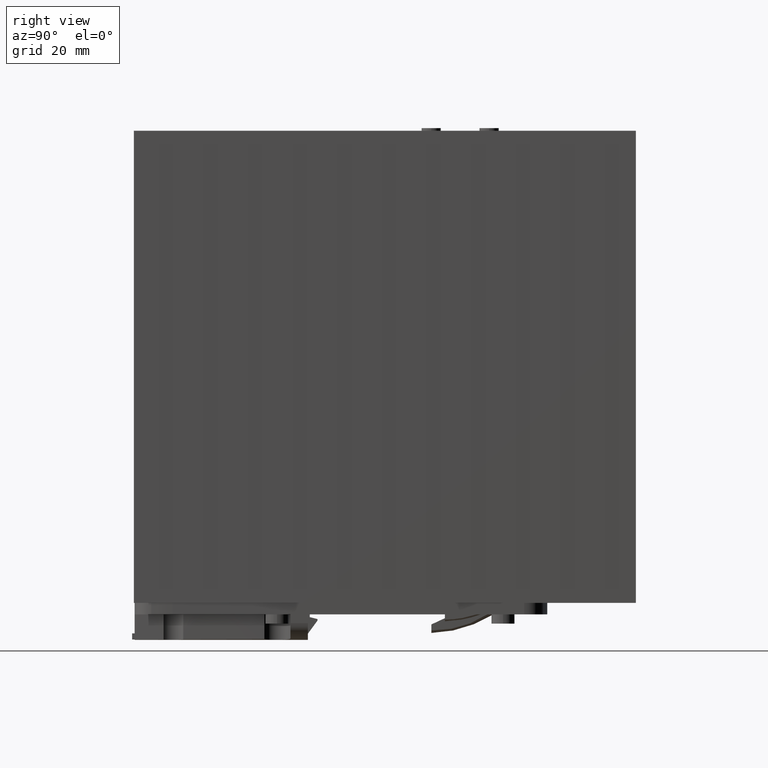
[diagram: clean part render]
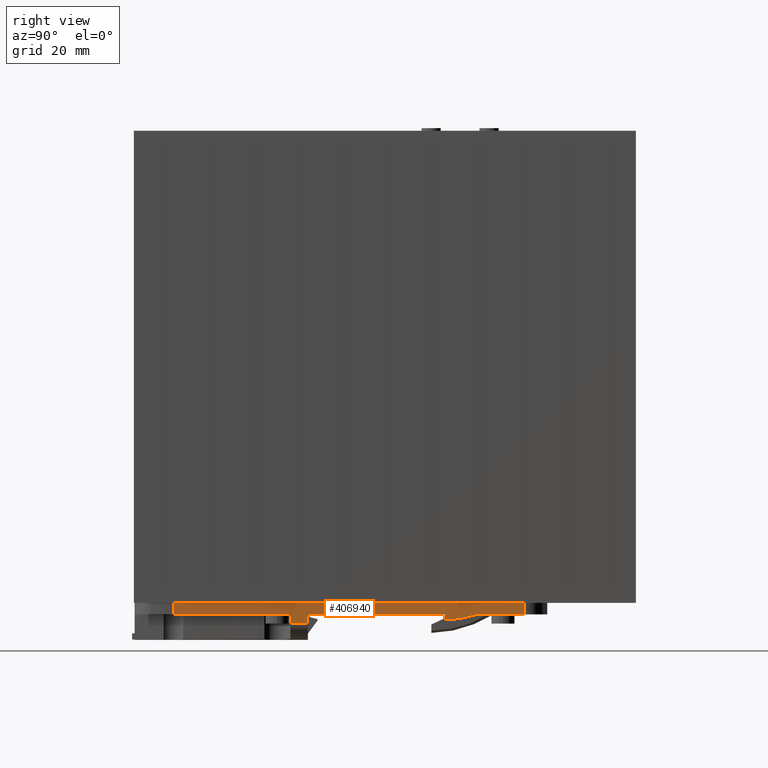
[diagram: same view with one face highlighted and labeled with its STEP entity id]
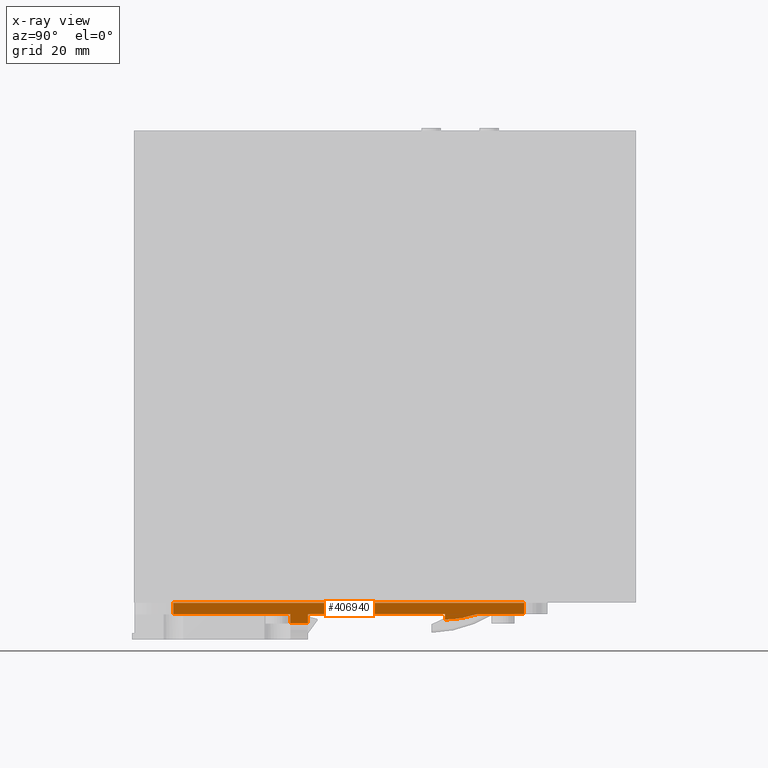
[diagram: x-ray of the same camera — body ghosted, the highlighted face saturated]
A machine part, right view. The second image highlights one B-rep face of the part: STEP entity #406940.
The next image is the same camera in x-ray: the body ghosted, the highlighted face saturated — about 0% of this face is hidden behind the body in this view.
In plain terms, the highlighted planar face has unit normal (1, -0, 0).
Its self-contained STEP definition (entity closure, byte-faithful):
#217320=CARTESIAN_POINT('',(33.000499715995,101.073749299711,
9.59999999999972));
#217330=VERTEX_POINT('',#217320);
#217360=CARTESIAN_POINT('',(33.0009956153419,65.,9.59999999999972));
#217370=DIRECTION('',(-1.37468202358229E-5,0.999999999905513,0.));
#217380=VECTOR('',#217370,1.);
#217390=LINE('',#217360,#217380);
#217400=CARTESIAN_POINT('',(33.0017489558362,10.1989273713365,
9.59999999999972));
#217410=VERTEX_POINT('',#217400);
#217420=EDGE_CURVE('',#217410,#217330,#217390,.T.);
#405850=CARTESIAN_POINT('',(33.0017801868841,7.92705304312717,
4.26218976403106));
#405860=DIRECTION('',(0.999999999905513,1.37468202358229E-5,
5.47171506835765E-60));
#405870=DIRECTION('',(-1.37468202358229E-5,0.999999999905513,
-3.26265223505973E-55));
#405880=AXIS2_PLACEMENT_3D('',#405850,#405860,#405870);
#405890=PLANE('',#405880);
#405900=CARTESIAN_POINT('',(33.0006696575565,88.711504177131,
6.59999999999972));
#405910=CARTESIAN_POINT('',(33.0006719124714,88.5474724289199,
6.54499876435233));
#405920=CARTESIAN_POINT('',(33.0006764378007,88.2182814473332,
6.43830317759604));
#405930=CARTESIAN_POINT('',(33.000683269252,87.7213337025253,
6.28828770391952));
#405940=CARTESIAN_POINT('',(33.0006901415978,87.2214111258961,
6.14837927027273));
#405950=CARTESIAN_POINT('',(33.0006970526605,86.7186721235517,
6.01863239606891));
#405960=CARTESIAN_POINT('',(33.0007039992523,86.2133485834282,
5.89910511178914));
#405970=CARTESIAN_POINT('',(33.0007109784218,85.7056552169942,
5.78983234790212));
#405980=CARTESIAN_POINT('',(33.0007179864518,85.1958624130451,
5.69084038128574));
#405990=CARTESIAN_POINT('',(33.000725020654,84.6841657369521,
5.6021215680328));
#406000=CARTESIAN_POINT('',(33.00073207813,84.1707760324298,
5.52365607701799));
#406010=CARTESIAN_POINT('',(33.0007391557873,83.6559182571558,
5.45540975513624));
#406020=CARTESIAN_POINT('',(33.0007462504263,83.1398251600656,
5.39733233342645));
#406030=CARTESIAN_POINT('',(33.0007533580194,82.6227897358548,
5.34936275109381));
#406040=CARTESIAN_POINT('',(33.0007604758497,82.105009605525,
5.31141202192599));
#406050=CARTESIAN_POINT('',(33.0007676011204,81.58668823754,
5.28337830489336));
#406060=CARTESIAN_POINT('',(33.0007735438335,81.1543909535517,
5.26818496728812));
#406070=CARTESIAN_POINT('',(33.0007774079118,80.8733020681821,
5.26224253117789));
#406080=CARTESIAN_POINT('',(33.0007791915005,80.7435565212837,
5.26025081898685));
#406090=CARTESIAN_POINT('',(33.000779860371,80.6949001409035,
5.25961678311948));
#406100=CARTESIAN_POINT('',(33.0007803062921,80.6624620199141,
5.25924029099116));
#406110=CARTESIAN_POINT('',(33.0007805292545,80.6462428184632,
5.25906260672673));
#406120=CARTESIAN_POINT('',(33.0007807522176,80.6300235703756,
5.25888922738471));
#406130=CARTESIAN_POINT('',(33.0007811981435,80.5975850915504,
5.25854040628514));
#406140=CARTESIAN_POINT('',(33.0007815697485,80.5705530205046,
5.25825017122511));
#406150=CARTESIAN_POINT('',(33.0007818670326,80.5489273646676,
5.25801783356707));
#406160=B_SPLINE_CURVE_WITH_KNOTS('',3,(#405900,#405910,#405920,#405930,
#405940,#405950,#405960,#405970,#405980,#405990,#406000,#406010,#406020,
#406030,#406040,#406050,#406060,#406070,#406080,#406090,#406100,#406110,
#406120,#406130,#406140,#406150),.UNSPECIFIED.,.F.,.F.,(4,1,1,1,1,1,1,1,
1,1,1,1,1,1,1,1,1,1,1,1,1,1,1,4),(0.,0.062480746009594,0.124964175441867
,0.187457061089911,0.249949239367105,0.312462027325257,0.374975010131072
,0.437486196039272,0.499997342980674,0.562516154063056,0.625034895044102
,0.687549791856975,0.750064972365341,0.812549759461867,0.875033471966575
,0.93751666189869,0.968758235405151,0.976568674753337,0.984379105555254,
0.986331716950949,0.988284328452784,0.99023694015508,0.992189551914222,
1.),.UNSPECIFIED.);
#406170=CARTESIAN_POINT('',(33.0006696575565,88.711504177131,
6.59999999999972));
#406180=VERTEX_POINT('',#406170);
#406190=CARTESIAN_POINT('',(33.0007818670326,80.5489273646893,
5.25801783356729));
#406200=VERTEX_POINT('',#406190);
#406210=EDGE_CURVE('',#406180,#406200,#406160,.T.);
#406220=ORIENTED_EDGE('',*,*,#406210,.F.);
#406230=CARTESIAN_POINT('',(33.0007818670326,80.5489273646893,
9.5999999999909));
#406240=DIRECTION('',(9.95682444457783E-60,-3.26265223399926E-55,-1.));
#406250=VECTOR('',#406240,1.);
#406260=LINE('',#406230,#406250);
#406270=CARTESIAN_POINT('',(33.0007818670326,80.5489273646893,
6.59999999999972));
#406280=VERTEX_POINT('',#406270);
#406290=EDGE_CURVE('',#406280,#406200,#406260,.T.);
#406300=ORIENTED_EDGE('',*,*,#406290,.T.);
#406310=CARTESIAN_POINT('',(33.0001130694827,129.2,6.59999999999972));
#406320=DIRECTION('',(1.37468202358229E-5,-0.999999999905513,
3.26265223505973E-55));
#406330=VECTOR('',#406320,1.);
#406340=LINE('',#406310,#406330);
#406350=CARTESIAN_POINT('',(33.0012698791509,45.0489273680436,
6.59999999999972));
#406360=VERTEX_POINT('',#406350);
#406370=EDGE_CURVE('',#406280,#406360,#406340,.T.);
#406380=ORIENTED_EDGE('',*,*,#406370,.F.);
#406390=CARTESIAN_POINT('',(33.0012698791509,45.0489273680436,
9.5999999999909));
#406400=DIRECTION('',(9.95682444457783E-60,-3.26265223399926E-55,-1.));
#406410=VECTOR('',#406400,1.);
#406420=LINE('',#406390,#406410);
#406430=CARTESIAN_POINT('',(33.0012698791509,45.0489273680436,
4.39238394539596));
#406440=VERTEX_POINT('',#406430);
#406450=EDGE_CURVE('',#406360,#406440,#406420,.T.);
#406460=ORIENTED_EDGE('',*,*,#406450,.F.);
#406470=CARTESIAN_POINT('',(33.0012698791509,45.0489273680436,
4.39238394539596));
#406480=DIRECTION('',(1.37468202360145E-5,-0.999999999905512,
3.26265223505973E-55));
#406490=VECTOR('',#406480,1.);
#406500=LINE('',#406470,#406490);
#406510=CARTESIAN_POINT('',(33.001331739842,40.5489273684688,
4.39238394539596));
#406520=VERTEX_POINT('',#406510);
#406530=EDGE_CURVE('',#406440,#406520,#406500,.T.);
#406540=ORIENTED_EDGE('',*,*,#406530,.F.);
#406550=CARTESIAN_POINT('',(33.001331739842,40.5489273684688,
9.5999999999909));
#406560=DIRECTION('',(-9.95682444457783E-60,3.26265223399926E-55,1.));
#406570=VECTOR('',#406560,1.);
#406580=LINE('',#406550,#406570);
#406590=CARTESIAN_POINT('',(33.001331739842,40.5489273684688,
6.59999999999972));
#406600=VERTEX_POINT('',#406590);
#406610=EDGE_CURVE('',#406520,#406600,#406580,.T.);
#406620=ORIENTED_EDGE('',*,*,#406610,.F.);
#406630=CARTESIAN_POINT('',(33.0001130694827,129.2,6.59999999999972));
#406640=DIRECTION('',(1.37468202358229E-5,-0.999999999905513,
3.26265223505973E-55));
#406650=VECTOR('',#406640,1.);
#406660=LINE('',#406630,#406650);
#406670=CARTESIAN_POINT('',(33.0017489558362,10.1989273713365,
6.59999999999972));
#406680=VERTEX_POINT('',#406670);
#406690=EDGE_CURVE('',#406600,#406680,#406660,.T.);
#406700=ORIENTED_EDGE('',*,*,#406690,.F.);
#406710=CARTESIAN_POINT('',(33.0017489558362,10.1989273713365,
9.59999999999221));
#406720=DIRECTION('',(9.95682444457783E-60,-3.26265223399926E-55,-1.));
#406730=VECTOR('',#406720,1.);
#406740=LINE('',#406710,#406730);
#406750=EDGE_CURVE('',#217410,#406680,#406740,.T.);
#406760=ORIENTED_EDGE('',*,*,#406750,.T.);
#406770=ORIENTED_EDGE('',*,*,#217420,.F.);
#406780=CARTESIAN_POINT('',(33.000499715995,101.073749299711,
9.59999999999221));
#406790=DIRECTION('',(9.95682444457783E-60,-3.26265223399926E-55,-1.));
#406800=VECTOR('',#406790,1.);
#406810=LINE('',#406780,#406800);
#406820=CARTESIAN_POINT('',(33.000499715995,101.073749299711,
6.59999999999972));
#406830=VERTEX_POINT('',#406820);
#406840=EDGE_CURVE('',#217330,#406830,#406810,.T.);
#406850=ORIENTED_EDGE('',*,*,#406840,.F.);
#406860=CARTESIAN_POINT('',(33.0001130694827,129.2,6.59999999999972));
#406870=DIRECTION('',(1.37468202358229E-5,-0.999999999905513,
3.26265223505973E-55));
#406880=VECTOR('',#406870,1.);
#406890=LINE('',#406860,#406880);
#406900=EDGE_CURVE('',#406830,#406180,#406890,.T.);
#406910=ORIENTED_EDGE('',*,*,#406900,.F.);
#406920=EDGE_LOOP('',(#406910,#406850,#406770,#406760,#406700,#406620,
#406540,#406460,#406380,#406300,#406220));
#406930=FACE_OUTER_BOUND('',#406920,.T.);
#406940=ADVANCED_FACE('',(#406930),#405890,.T.);